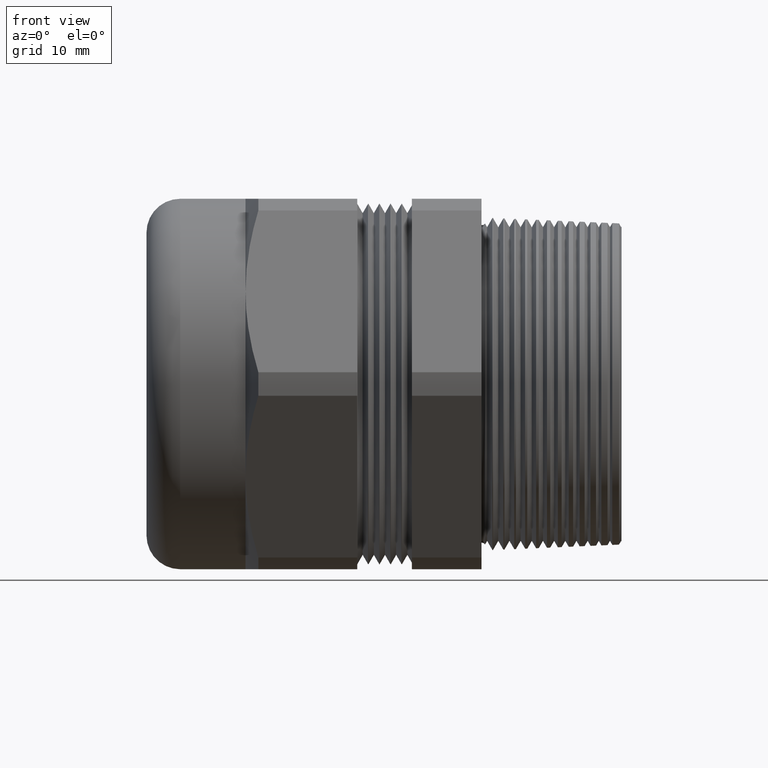
[diagram: clean part render]
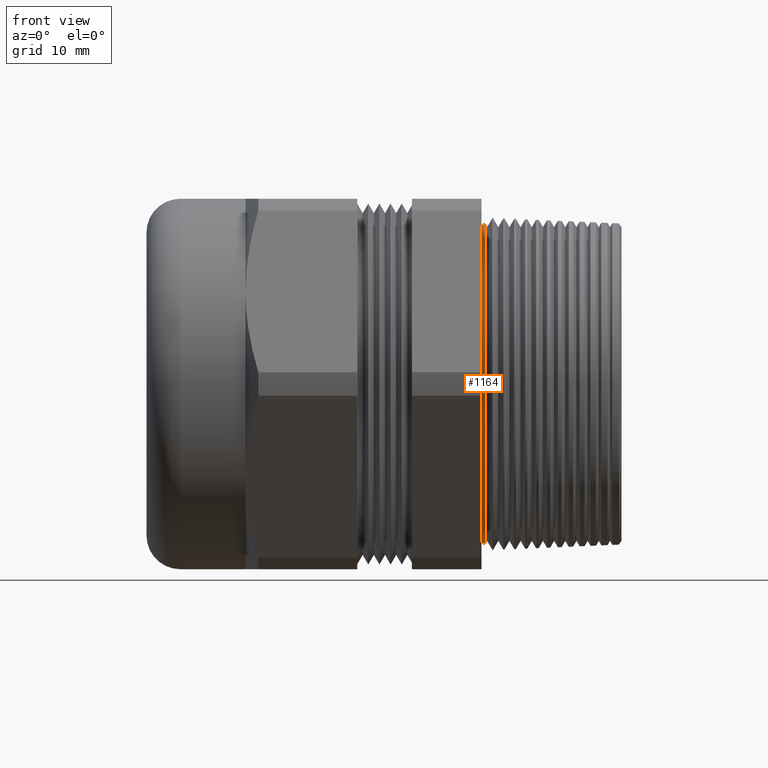
[diagram: same view with one face highlighted and labeled with its STEP entity id]
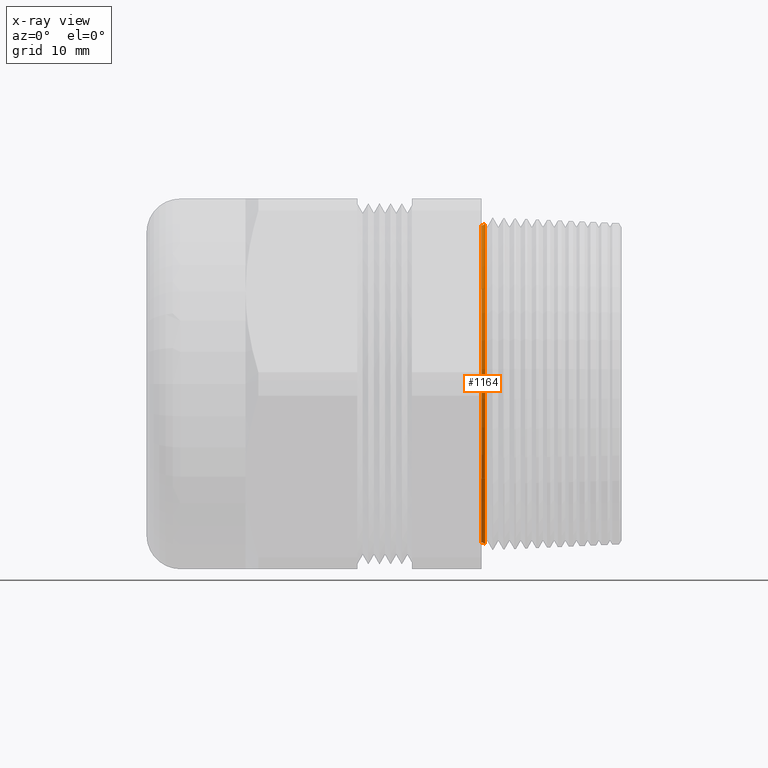
[diagram: x-ray of the same camera — body ghosted, the highlighted face saturated]
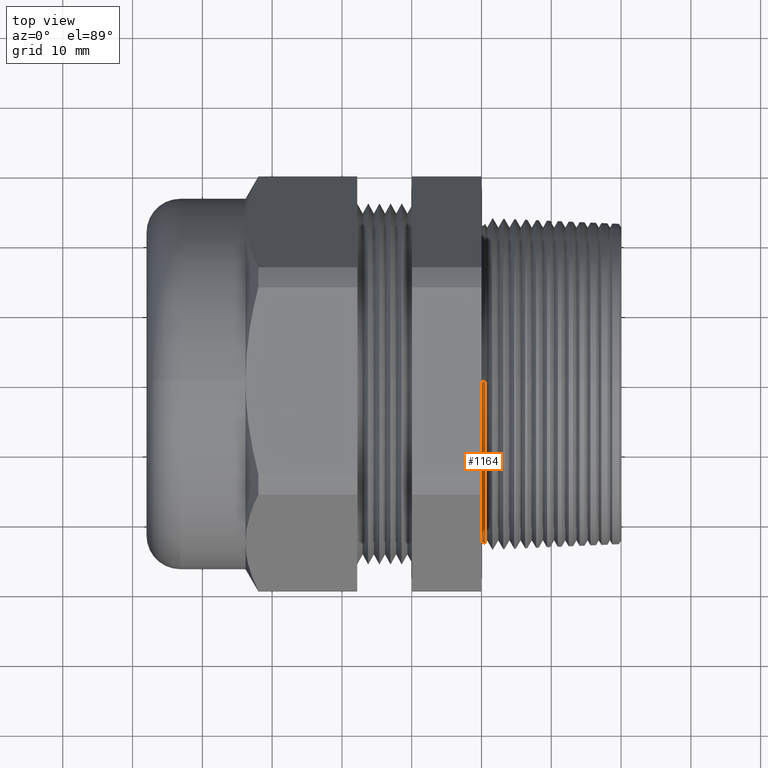
[diagram: same view with one face highlighted and labeled with its STEP entity id]
A machine part, front view. The second image highlights one B-rep face of the part: STEP entity #1164.
The next image is the same camera in x-ray: the body ghosted, the highlighted face saturated — about 0% of this face is hidden behind the body in this view.
A second angle (top view) of the same face is appended — the face is thin or edge-on in the first view.
In plain terms, the highlighted toroidal blend (fillet) surface has major radius 23.368 mm and minor (blend) radius 0.635 mm.
Its self-contained STEP definition (entity closure, byte-faithful):
#1077 = ORIENTED_EDGE ( 'NONE', *, *, #1252, .F. ) ;
#1078 = ORIENTED_EDGE ( 'NONE', *, *, #1079, .T. ) ;
#1079 = EDGE_CURVE ( 'NONE', #1230, #1256, #2033, .T. ) ;
#1080 = ORIENTED_EDGE ( 'NONE', *, *, #1237, .T. ) ;
#1082 = EDGE_CURVE ( 'NONE', #1196, #1254, #2022, .T. ) ;
#1085 = ORIENTED_EDGE ( 'NONE', *, *, #1082, .F. ) ;
#1151 = EDGE_LOOP ( 'NONE', ( #1080, #1078, #1077, #1085 ) ) ;
#1164 = ADVANCED_FACE ( 'NONE', ( #2186 ), #2185, .F. ) ;
#1196 = VERTEX_POINT ( 'NONE', #2259 ) ;
#1230 = VERTEX_POINT ( 'NONE', #2314 ) ;
#1237 = EDGE_CURVE ( 'NONE', #1196, #1230, #2360, .T. ) ;
#1252 = EDGE_CURVE ( 'NONE', #1254, #1256, #2395, .T. ) ;
#1254 = VERTEX_POINT ( 'NONE', #2388 ) ;
#1256 = VERTEX_POINT ( 'NONE', #2381 ) ;
#2018 = DIRECTION ( 'NONE',  ( 0.0000000000000000000, 0.0000000000000000000, 1.000000000000000000 ) ) ;
#2019 = DIRECTION ( 'NONE',  ( 1.000000000000000000, 0.0000000000000000000, 0.0000000000000000000 ) ) ;
#2020 = CARTESIAN_POINT ( 'NONE',  ( 0.02011669327523295200, 0.0000000000000000000, 0.0000000000000000000 ) ) ;
#2021 = AXIS2_PLACEMENT_3D ( 'NONE', #2020, #2019, #2018 ) ;
#2022 = CIRCLE ( 'NONE', #2021, 0.9051568651670165400 ) ;
#2029 = DIRECTION ( 'NONE',  ( 0.0000000000000000000, 0.0000000000000000000, -1.000000000000000000 ) ) ;
#2030 = DIRECTION ( 'NONE',  ( 1.000000000000000000, 0.0000000000000000000, 0.0000000000000000000 ) ) ;
#2031 = CARTESIAN_POINT ( 'NONE',  ( -3.061616997868362800E-018, 0.0000000000000000000, 0.0000000000000000000 ) ) ;
#2032 = AXIS2_PLACEMENT_3D ( 'NONE', #2031, #2030, #2029 ) ;
#2033 = CIRCLE ( 'NONE', #2032, 0.8950000000000000200 ) ;
#2180 = DIRECTION ( 'NONE',  ( 0.0000000000000000000, 0.0000000000000000000, -1.000000000000000000 ) ) ;
#2181 = DIRECTION ( 'NONE',  ( 1.000000000000000000, 0.0000000000000000000, 0.0000000000000000000 ) ) ;
#2182 = CARTESIAN_POINT ( 'NONE',  ( 0.0000000000000000000, 0.0000000000000000000, 0.0000000000000000000 ) ) ;
#2183 = AXIS2_PLACEMENT_3D ( 'NONE', #2182, #2181, #2180 ) ;
#2185 = TOROIDAL_SURFACE ( 'NONE', #2183, 0.9199999999999999300, 0.02499999999999983500 ) ;
#2186 = FACE_OUTER_BOUND ( 'NONE', #1151, .T. ) ;
#2259 = CARTESIAN_POINT ( 'NONE',  ( 0.02011669327523295200, 0.0000000000000000000, 0.9051568651670165400 ) ) ;
#2314 = CARTESIAN_POINT ( 'NONE',  ( -3.061616997868358500E-018, 1.096058885236881200E-016, 0.8950000000000000200 ) ) ;
#2352 = DIRECTION ( 'NONE',  ( 0.0000000000000000000, 1.224646799147352200E-016, 1.000000000000000000 ) ) ;
#2353 = DIRECTION ( 'NONE',  ( 0.0000000000000000000, 1.000000000000000000, -1.224646799147353200E-016 ) ) ;
#2354 = CARTESIAN_POINT ( 'NONE',  ( 0.0000000000000000000, 1.126675055215564900E-016, 0.9199999999999999300 ) ) ;
#2355 = AXIS2_PLACEMENT_3D ( 'NONE', #2354, #2353, #2352 ) ;
#2360 = CIRCLE ( 'NONE', #2355, 0.02499999999999987000 ) ;
#2381 = CARTESIAN_POINT ( 'NONE',  ( -3.061616997868358500E-018, 0.0000000000000000000, -0.8950000000000000200 ) ) ;
#2388 = CARTESIAN_POINT ( 'NONE',  ( 0.02011669327523295200, 1.108497457653039200E-016, -0.9051568651670165400 ) ) ;
#2391 = DIRECTION ( 'NONE',  ( 0.0000000000000000000, 0.0000000000000000000, -1.000000000000000000 ) ) ;
#2392 = DIRECTION ( 'NONE',  ( 0.0000000000000000000, -1.000000000000000000, 0.0000000000000000000 ) ) ;
#2393 = CARTESIAN_POINT ( 'NONE',  ( 0.0000000000000000000, 0.0000000000000000000, -0.9199999999999999300 ) ) ;
#2394 = AXIS2_PLACEMENT_3D ( 'NONE', #2393, #2392, #2391 ) ;
#2395 = CIRCLE ( 'NONE', #2394, 0.02499999999999987000 ) ;